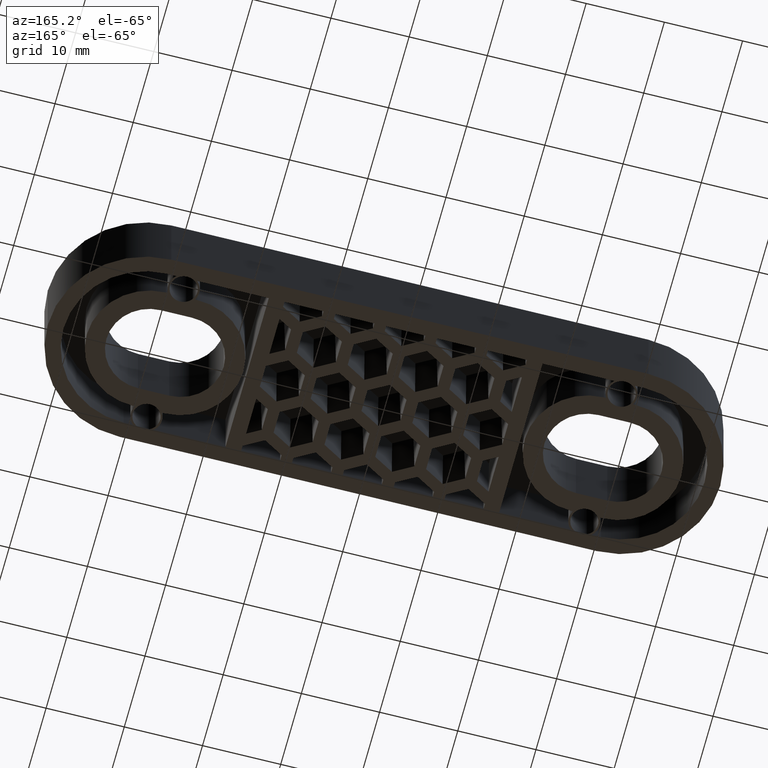
[diagram: clean part render]
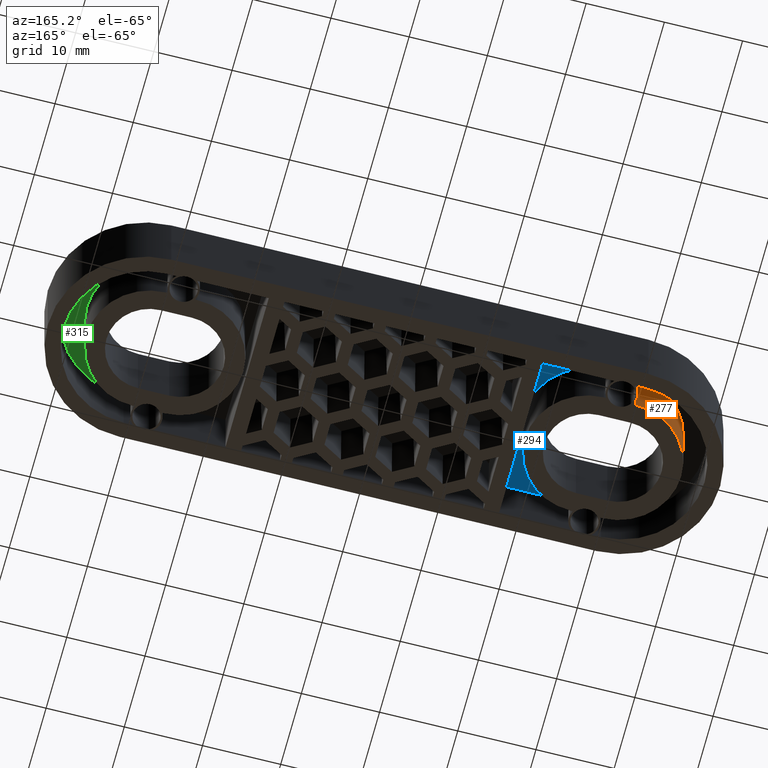
[diagram: same view with three faces highlighted in distinct colors, each labeled with its STEP entity id]
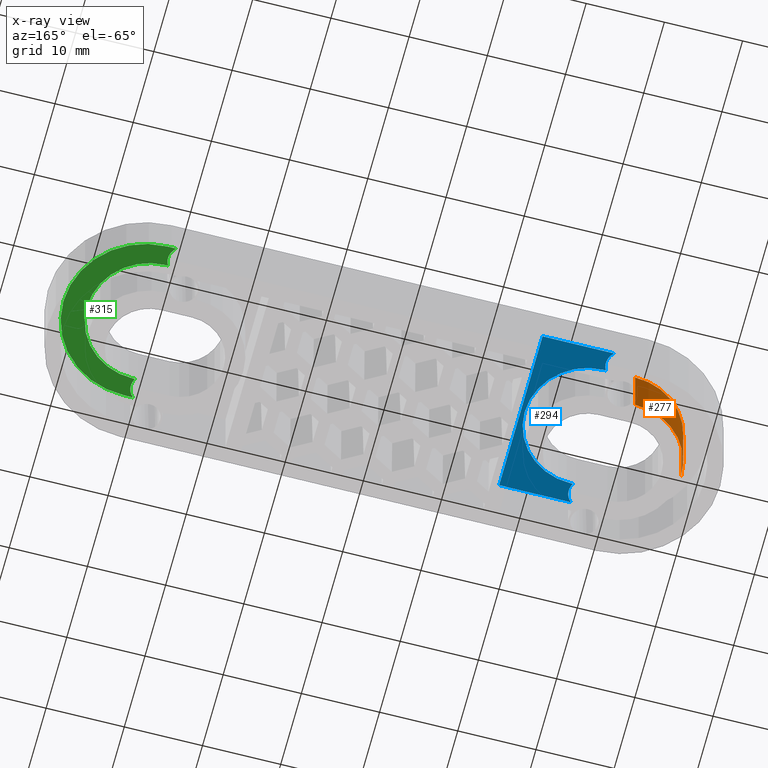
[diagram: x-ray of the same camera — body ghosted, the three highlighted faces saturated]
A machine part, auxiliary view with three faces highlighted in distinct colors.
The next image is the same camera in x-ray (body ghosted, the three faces saturated) — at least one of them is partly hidden behind the body in this view.
Their STEP definitions:

[orange] entity #277 — the highlighted cylindrical surface (partial cylindrical patch) has radius 8 mm, axis along (0, -0, -1).
#277 = ADVANCED_FACE( '', ( #806 ), #807, .T. );
#806 = FACE_OUTER_BOUND( '', #1414, .T. );
#807 = CYLINDRICAL_SURFACE( '', #1415, 8.00000000000000 );
#1414 = EDGE_LOOP( '', ( #3254, #3255, #3256, #3257 ) );
#1415 = AXIS2_PLACEMENT_3D( '', #3258, #3259, #3260 );
#3254 = ORIENTED_EDGE( '', *, *, #4372, .T. );
#3255 = ORIENTED_EDGE( '', *, *, #4373, .F. );
#3256 = ORIENTED_EDGE( '', *, *, #4370, .F. );
#3257 = ORIENTED_EDGE( '', *, *, #3877, .F. );
#3258 = CARTESIAN_POINT( '', ( -30.0000000000000, -3.95928949346902E-015, -7.99999999977882 ) );
#3259 = DIRECTION( '', ( 0.000000000000000, -6.12303176911189E-017, -1.00000000000000 ) );
#3260 = DIRECTION( '', ( -0.661437827766149, 0.749999999999999, -4.59227382683391E-017 ) );
#3877 = EDGE_CURVE( '', #4648, #4650, #4651, .T. );
#4370 = EDGE_CURVE( '', #4650, #5472, #5473, .T. );
#4372 = EDGE_CURVE( '', #4648, #5475, #5476, .T. );
#4373 = EDGE_CURVE( '', #5472, #5475, #5477, .T. );
#4648 = VERTEX_POINT( '', #5862 );
#4650 = VERTEX_POINT( '', #5864 );
#4651 = CIRCLE( '', #5865, 8.00000000000000 );
#5472 = VERTEX_POINT( '', #7154 );
#5473 = LINE( '', #7155, #7156 );
#5475 = VERTEX_POINT( '', #7159 );
#5476 = LINE( '', #7160, #7161 );
#5477 = CIRCLE( '', #7162, 8.00000000000000 );
#5862 = CARTESIAN_POINT( '', ( -38.0000000000000, -5.20417042793042E-015, -2.77555756156289E-014 ) );
#5864 = CARTESIAN_POINT( '', ( -30.0000000000000, 8.00000000000000, -2.82454181571579E-014 ) );
#5865 = AXIS2_PLACEMENT_3D( '', #7579, #7580, #7581 );
#7154 = CARTESIAN_POINT( '', ( -30.0000000000000, 8.00000000000000, 7.99999999999998 ) );
#7155 = CARTESIAN_POINT( '', ( -30.0000000000000, 8.00000000000000, -7.99999999977882 ) );
#7156 = VECTOR( '', #8122, 1000.00000000000 );
#7159 = CARTESIAN_POINT( '', ( -38.0000000000000, -4.71432788640147E-015, 7.99999999999998 ) );
#7160 = CARTESIAN_POINT( '', ( -38.0000000000000, -5.69401296944583E-015, -7.99999999977882 ) );
#7161 = VECTOR( '', #8124, 1000.00000000000 );
#7162 = AXIS2_PLACEMENT_3D( '', #8125, #8126, #8127 );
#7579 = CARTESIAN_POINT( '', ( -30.0000000000000, -3.46944695195362E-015, -2.77555756156289E-014 ) );
#7580 = DIRECTION( '', ( 0.000000000000000, -6.12303176911189E-017, -1.00000000000000 ) );
#7581 = DIRECTION( '', ( 0.000000000000000, 1.00000000000000, -6.12303176911189E-017 ) );
#8122 = DIRECTION( '', ( 0.000000000000000, 6.12303176911189E-017, 1.00000000000000 ) );
#8124 = DIRECTION( '', ( 0.000000000000000, 6.12303176911189E-017, 1.00000000000000 ) );
#8125 = CARTESIAN_POINT( '', ( -30.0000000000000, -2.97960441042466E-015, 7.99999999999998 ) );
#8126 = DIRECTION( '', ( -4.10536659470161E-048, 6.12303176911189E-017, 1.00000000000000 ) );
#8127 = DIRECTION( '', ( -1.66533453693773E-016, 1.00000000000000, -6.12303176911189E-017 ) );

[blue] entity #294 — the highlighted planar face has unit normal (0, 0, 1).
#294 = ADVANCED_FACE( '', ( #840 ), #841, .F. );
#840 = FACE_OUTER_BOUND( '', #1448, .T. );
#841 = PLANE( '', #1449 );
#1448 = EDGE_LOOP( '', ( #3379, #3380, #3381, #3382, #3383, #3384, #3385, #3386, #3387 ) );
#1449 = AXIS2_PLACEMENT_3D( '', #3388, #3389, #3390 );
#3379 = ORIENTED_EDGE( '', *, *, #4386, .T. );
#3380 = ORIENTED_EDGE( '', *, *, #4389, .T. );
#3381 = ORIENTED_EDGE( '', *, *, #4391, .T. );
#3382 = ORIENTED_EDGE( '', *, *, #4393, .T. );
#3383 = ORIENTED_EDGE( '', *, *, #4395, .T. );
#3384 = ORIENTED_EDGE( '', *, *, #4397, .T. );
#3385 = ORIENTED_EDGE( '', *, *, #4399, .T. );
#3386 = ORIENTED_EDGE( '', *, *, #4401, .T. );
#3387 = ORIENTED_EDGE( '', *, *, #4402, .T. );
#3388 = CARTESIAN_POINT( '', ( -28.0000000000000, 9.00000000000000, 7.99999999999998 ) );
#3389 = DIRECTION( '', ( 0.000000000000000, 6.12303176911189E-017, 1.00000000000000 ) );
#3390 = DIRECTION( '', ( 0.866025403784438, -0.500000000000001, 3.06151588455595E-017 ) );
#4386 = EDGE_CURVE( '', #5496, #5494, #5497, .T. );
#4389 = EDGE_CURVE( '', #5494, #5499, #5501, .T. );
#4391 = EDGE_CURVE( '', #5499, #5502, #5504, .T. );
#4393 = EDGE_CURVE( '', #5502, #5505, #5507, .T. );
#4395 = EDGE_CURVE( '', #5505, #5508, #5510, .T. );
#4397 = EDGE_CURVE( '', #5508, #5511, #5513, .T. );
#4399 = EDGE_CURVE( '', #5511, #5514, #5516, .T. );
#4401 = EDGE_CURVE( '', #5514, #5517, #5519, .T. );
#4402 = EDGE_CURVE( '', #5517, #5496, #5520, .T. );
#5494 = VERTEX_POINT( '', #7186 );
#5496 = VERTEX_POINT( '', #7189 );
#5497 = LINE( '', #7190, #7191 );
#5499 = VERTEX_POINT( '', #7194 );
#5501 = CIRCLE( '', #7197, 2.00000000000000 );
#5502 = VERTEX_POINT( '', #7198 );
#5504 = LINE( '', #7201, #7202 );
#5505 = VERTEX_POINT( '', #7203 );
#5507 = LINE( '', #7206, #7207 );
#5508 = VERTEX_POINT( '', #7208 );
#5510 = LINE( '', #7211, #7212 );
#5511 = VERTEX_POINT( '', #7213 );
#5513 = CIRCLE( '', #7216, 2.00000000000000 );
#5514 = VERTEX_POINT( '', #7217 );
#5516 = LINE( '', #7220, #7221 );
#5517 = VERTEX_POINT( '', #7222 );
#5519 = CIRCLE( '', #7225, 8.00000000000000 );
#5520 = CIRCLE( '', #7226, 8.00000000000000 );
#7186 = CARTESIAN_POINT( '', ( -26.2679491924311, 8.00000000000000, 7.99999999999998 ) );
#7189 = CARTESIAN_POINT( '', ( -26.0000000000000, 8.00000000000000, 7.99999999999998 ) );
#7190 = CARTESIAN_POINT( '', ( -26.0000000000000, 8.00000000000000, 7.99999999999998 ) );
#7191 = VECTOR( '', #8148, 1000.00000000000 );
#7194 = CARTESIAN_POINT( '', ( -26.6771243444677, 10.5000000000000, 7.99999999999998 ) );
#7197 = AXIS2_PLACEMENT_3D( '', #8151, #8152, #8153 );
#7198 = CARTESIAN_POINT( '', ( -17.5000000000000, 10.5000000000000, 7.99999999999998 ) );
#7201 = CARTESIAN_POINT( '', ( -26.6771243444677, 10.5000000000000, 7.99999999999998 ) );
#7202 = VECTOR( '', #8155, 1000.00000000000 );
#7203 = CARTESIAN_POINT( '', ( -17.5000000000000, -10.5000000000000, 7.99999999999998 ) );
#7206 = CARTESIAN_POINT( '', ( -17.5000000000000, 10.5000000000000, 7.99999999999998 ) );
#7207 = VECTOR( '', #8157, 1000.00000000000 );
#7208 = CARTESIAN_POINT( '', ( -26.6771243444677, -10.5000000000000, 7.99999999999998 ) );
#7211 = CARTESIAN_POINT( '', ( -17.5000000000000, -10.5000000000000, 7.99999999999998 ) );
#7212 = VECTOR( '', #8159, 1000.00000000000 );
#7213 = CARTESIAN_POINT( '', ( -26.2679491924311, -7.99999999999999, 7.99999999999998 ) );
#7216 = AXIS2_PLACEMENT_3D( '', #8161, #8162, #8163 );
#7217 = CARTESIAN_POINT( '', ( -26.0000000000000, -7.99999999999999, 7.99999999999998 ) );
#7220 = CARTESIAN_POINT( '', ( -26.2679491924311, -7.99999999999999, 7.99999999999998 ) );
#7221 = VECTOR( '', #8165, 1000.00000000000 );
#7222 = CARTESIAN_POINT( '', ( -18.0000000000000, 1.08981833973898E-014, 7.99999999999998 ) );
#7225 = AXIS2_PLACEMENT_3D( '', #8167, #8168, #8169 );
#7226 = AXIS2_PLACEMENT_3D( '', #8170, #8171, #8172 );
#8148 = DIRECTION( '', ( -1.00000000000000, 5.55111512312578E-017, -3.39896542528966E-033 ) );
#8151 = CARTESIAN_POINT( '', ( -28.0000000000000, 9.00000000000000, 7.99999999999998 ) );
#8152 = DIRECTION( '', ( 0.000000000000000, 6.12303176911189E-017, 1.00000000000000 ) );
#8153 = DIRECTION( '', ( 1.00000000000000, 9.43689570931383E-016, -5.77824122299242E-032 ) );
#8155 = DIRECTION( '', ( 1.00000000000000, 0.000000000000000, 0.000000000000000 ) );
#8157 = DIRECTION( '', ( -8.88178419700125E-016, -1.00000000000000, 6.12303176911189E-017 ) );
#8159 = DIRECTION( '', ( -1.00000000000000, -5.55111512312578E-017, 3.39896542528966E-033 ) );
#8161 = CARTESIAN_POINT( '', ( -28.0000000000000, -9.00000000000000, 7.99999999999998 ) );
#8162 = DIRECTION( '', ( 1.09476442525377E-047, 6.12303176911189E-017, 1.00000000000000 ) );
#8163 = DIRECTION( '', ( 1.00000000000000, -6.10622663543836E-016, 3.73886196781863E-032 ) );
#8165 = DIRECTION( '', ( 1.00000000000000, -5.55111512312578E-017, 3.39896542528966E-033 ) );
#8167 = CARTESIAN_POINT( '', ( -26.0000000000000, 7.42873644543618E-015, 7.99999999999998 ) );
#8168 = DIRECTION( '', ( 0.000000000000000, 6.12303176911189E-017, 1.00000000000000 ) );
#8169 = DIRECTION( '', ( 2.77555756156289E-016, 1.00000000000000, -6.12303176911189E-017 ) );
#8170 = CARTESIAN_POINT( '', ( -26.0000000000000, 3.95928949348256E-015, 7.99999999999998 ) );
#8171 = DIRECTION( '', ( -1.36845553156721E-048, 6.12303176911189E-017, 1.00000000000000 ) );
#8172 = DIRECTION( '', ( -1.66533453693773E-016, 1.00000000000000, -6.12303176911189E-017 ) );

[green] entity #315 — the highlighted planar face has unit normal (-0, 0, 1).
#315 = ADVANCED_FACE( '', ( #882 ), #883, .F. );
#882 = FACE_OUTER_BOUND( '', #1490, .T. );
#883 = PLANE( '', #1491 );
#1490 = EDGE_LOOP( '', ( #3536, #3537, #3538, #3539, #3540, #3541, #3542, #3543, #3544, #3545 ) );
#1491 = AXIS2_PLACEMENT_3D( '', #3546, #3547, #3548 );
#3536 = ORIENTED_EDGE( '', *, *, #4422, .T. );
#3537 = ORIENTED_EDGE( '', *, *, #4425, .T. );
#3538 = ORIENTED_EDGE( '', *, *, #4427, .T. );
#3539 = ORIENTED_EDGE( '', *, *, #4429, .T. );
#3540 = ORIENTED_EDGE( '', *, *, #4431, .T. );
#3541 = ORIENTED_EDGE( '', *, *, #4433, .T. );
#3542 = ORIENTED_EDGE( '', *, *, #4435, .T. );
#3543 = ORIENTED_EDGE( '', *, *, #4437, .T. );
#3544 = ORIENTED_EDGE( '', *, *, #4439, .T. );
#3545 = ORIENTED_EDGE( '', *, *, #4440, .T. );
#3546 = CARTESIAN_POINT( '', ( 28.0000000000000, -9.00000000000000, 7.99999999999998 ) );
#3547 = DIRECTION( '', ( -6.46234853557053E-033, 6.12303176911189E-017, 1.00000000000000 ) );
#3548 = DIRECTION( '', ( 0.661437827766147, -0.750000000000001, 4.59227382683392E-017 ) );
#4422 = EDGE_CURVE( '', #5550, #5548, #5551, .T. );
#4425 = EDGE_CURVE( '', #5548, #5553, #5555, .T. );
#4427 = EDGE_CURVE( '', #5553, #5556, #5558, .T. );
#4429 = EDGE_CURVE( '', #5556, #5559, #5561, .T. );
#4431 = EDGE_CURVE( '', #5559, #5562, #5564, .T. );
#4433 = EDGE_CURVE( '', #5562, #5565, #5567, .T. );
#4435 = EDGE_CURVE( '', #5565, #5568, #5570, .T. );
#4437 = EDGE_CURVE( '', #5568, #5571, #5573, .T. );
#4439 = EDGE_CURVE( '', #5571, #5574, #5576, .T. );
#4440 = EDGE_CURVE( '', #5574, #5550, #5577, .T. );
#5548 = VERTEX_POINT( '', #7268 );
#5550 = VERTEX_POINT( '', #7271 );
#5551 = LINE( '', #7272, #7273 );
#5553 = VERTEX_POINT( '', #7276 );
#5555 = CIRCLE( '', #7279, 2.00000000000000 );
#5556 = VERTEX_POINT( '', #7280 );
#5558 = LINE( '', #7283, #7284 );
#5559 = VERTEX_POINT( '', #7285 );
#5561 = CIRCLE( '', #7288, 8.00000000000000 );
#5562 = VERTEX_POINT( '', #7289 );
#5564 = CIRCLE( '', #7292, 8.00000000000000 );
#5565 = VERTEX_POINT( '', #7293 );
#5567 = LINE( '', #7296, #7297 );
#5568 = VERTEX_POINT( '', #7298 );
#5570 = CIRCLE( '', #7301, 1.99999999999999 );
#5571 = VERTEX_POINT( '', #7302 );
#5573 = LINE( '', #7305, #7306 );
#5574 = VERTEX_POINT( '', #7307 );
#5576 = CIRCLE( '', #7310, 10.5000000000000 );
#5577 = CIRCLE( '', #7311, 10.5000000000000 );
#7268 = CARTESIAN_POINT( '', ( 29.3228756555323, -10.5000000000000, 7.99999999999998 ) );
#7271 = CARTESIAN_POINT( '', ( 30.5000000000000, -10.5000000000000, 7.99999999999998 ) );
#7272 = CARTESIAN_POINT( '', ( 30.5000000000000, -10.5000000000000, 7.99999999999998 ) );
#7273 = VECTOR( '', #8200, 1000.00000000000 );
#7276 = CARTESIAN_POINT( '', ( 29.7320508075689, -8.00000000000000, 7.99999999999998 ) );
#7279 = AXIS2_PLACEMENT_3D( '', #8203, #8204, #8205 );
#7280 = CARTESIAN_POINT( '', ( 30.0000000000000, -8.00000000000000, 7.99999999999998 ) );
#7283 = CARTESIAN_POINT( '', ( 29.7320508075689, -8.00000000000000, 7.99999999999998 ) );
#7284 = VECTOR( '', #8207, 1000.00000000000 );
#7285 = CARTESIAN_POINT( '', ( 38.0000000000000, -2.97960441042466E-015, 7.99999999999998 ) );
#7288 = AXIS2_PLACEMENT_3D( '', #8209, #8210, #8211 );
#7289 = CARTESIAN_POINT( '', ( 30.0000000000000, 8.00000000000000, 7.99999999999998 ) );
#7292 = AXIS2_PLACEMENT_3D( '', #8213, #8214, #8215 );
#7293 = CARTESIAN_POINT( '', ( 29.7320508075689, 7.99999999999999, 7.99999999999998 ) );
#7296 = CARTESIAN_POINT( '', ( 30.0000000000000, 7.99999999999999, 7.99999999999998 ) );
#7297 = VECTOR( '', #8217, 1000.00000000000 );
#7298 = CARTESIAN_POINT( '', ( 29.3228756555323, 10.5000000000000, 7.99999999999998 ) );
#7301 = AXIS2_PLACEMENT_3D( '', #8219, #8220, #8221 );
#7302 = CARTESIAN_POINT( '', ( 30.5000000000000, 10.5000000000000, 7.99999999999998 ) );
#7305 = CARTESIAN_POINT( '', ( 29.3228756555323, 10.5000000000000, 7.99999999999998 ) );
#7306 = VECTOR( '', #8223, 1000.00000000000 );
#7307 = CARTESIAN_POINT( '', ( 41.0000000000000, -4.71432788640147E-015, 7.99999999999998 ) );
#7310 = AXIS2_PLACEMENT_3D( '', #8225, #8226, #8227 );
#7311 = AXIS2_PLACEMENT_3D( '', #8228, #8229, #8230 );
#8200 = DIRECTION( '', ( -1.00000000000000, -5.55111512312578E-017, 3.39896542528966E-033 ) );
#8203 = CARTESIAN_POINT( '', ( 28.0000000000000, -9.00000000000000, 7.99999999999998 ) );
#8204 = DIRECTION( '', ( 0.000000000000000, 6.12303176911189E-017, 1.00000000000000 ) );
#8205 = DIRECTION( '', ( 1.00000000000000, -8.32667268468867E-016, 5.09844813793449E-032 ) );
#8207 = DIRECTION( '', ( 1.00000000000000, 0.000000000000000, 0.000000000000000 ) );
#8209 = CARTESIAN_POINT( '', ( 30.0000000000000, -1.24488093444786E-015, 7.99999999999998 ) );
#8210 = DIRECTION( '', ( -2.73691106313441E-048, 6.12303176911189E-017, 1.00000000000000 ) );
#8211 = DIRECTION( '', ( -2.77555756156289E-016, 1.00000000000000, -6.12303176911189E-017 ) );
#8213 = CARTESIAN_POINT( '', ( 30.0000000000000, -1.24488093444786E-015, 7.99999999999998 ) );
#8214 = DIRECTION( '', ( 0.000000000000000, 6.12303176911189E-017, 1.00000000000000 ) );
#8215 = DIRECTION( '', ( 5.55111512312578E-017, 1.00000000000000, -6.12303176911189E-017 ) );
#8217 = DIRECTION( '', ( -1.00000000000000, -1.11022302462516E-016, 6.79793085057932E-033 ) );
#8219 = CARTESIAN_POINT( '', ( 28.0000000000000, 8.99999999999999, 7.99999999999998 ) );
#8220 = DIRECTION( '', ( 0.000000000000000, 6.12303176911189E-017, 1.00000000000000 ) );
#8221 = DIRECTION( '', ( 1.00000000000000, 5.55111512312578E-017, -3.39896542528966E-033 ) );
#8223 = DIRECTION( '', ( 1.00000000000000, 5.55111512312578E-017, -3.39896542528966E-033 ) );
#8225 = CARTESIAN_POINT( '', ( 30.5000000000000, -8.18377483835509E-015, 7.99999999999998 ) );
#8226 = DIRECTION( '', ( 0.000000000000000, -6.12303176911189E-017, -1.00000000000000 ) );
#8227 = DIRECTION( '', ( -1.11022302462516E-016, 1.00000000000000, -6.12303176911189E-017 ) );
#8228 = CARTESIAN_POINT( '', ( 30.5000000000000, -8.18377483835509E-015, 7.99999999999998 ) );
#8229 = DIRECTION( '', ( -3.97193442268939E-049, -6.12303176911189E-017, -1.00000000000000 ) );
#8230 = DIRECTION( '', ( 5.55111512312578E-017, 1.00000000000000, -6.12303176911189E-017 ) );